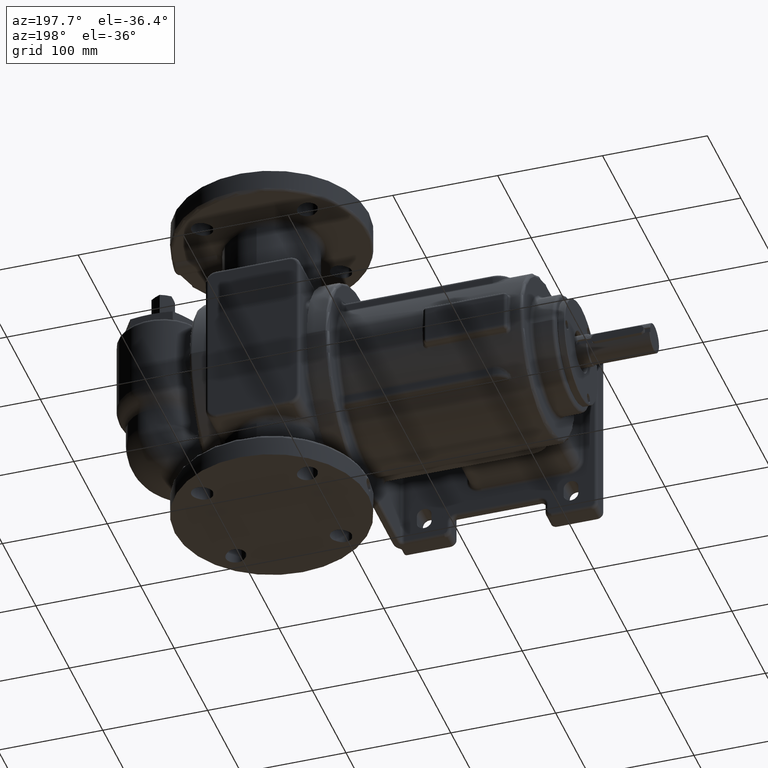
[diagram: clean part render]
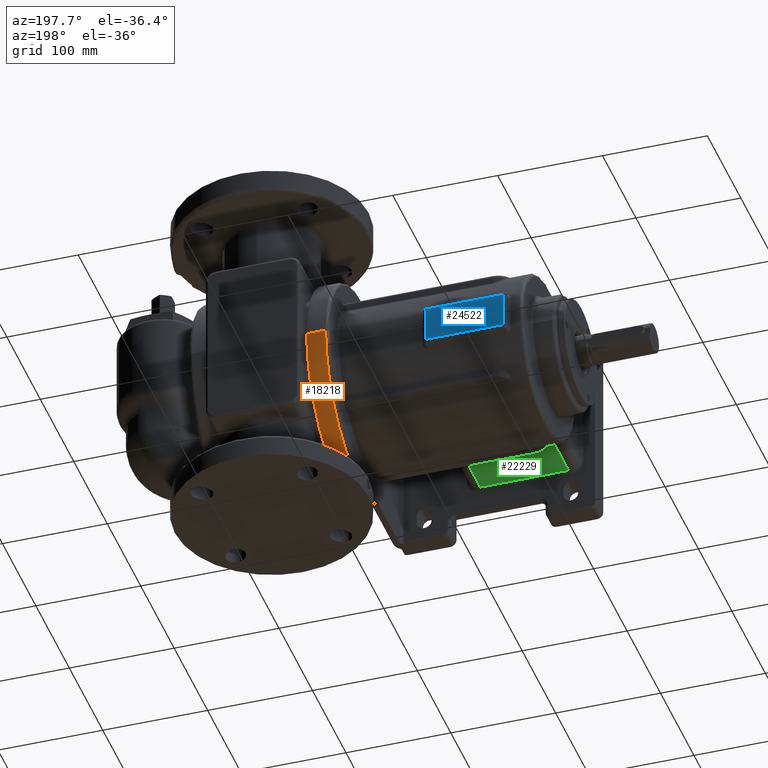
[diagram: same view with three faces highlighted in distinct colors, each labeled with its STEP entity id]
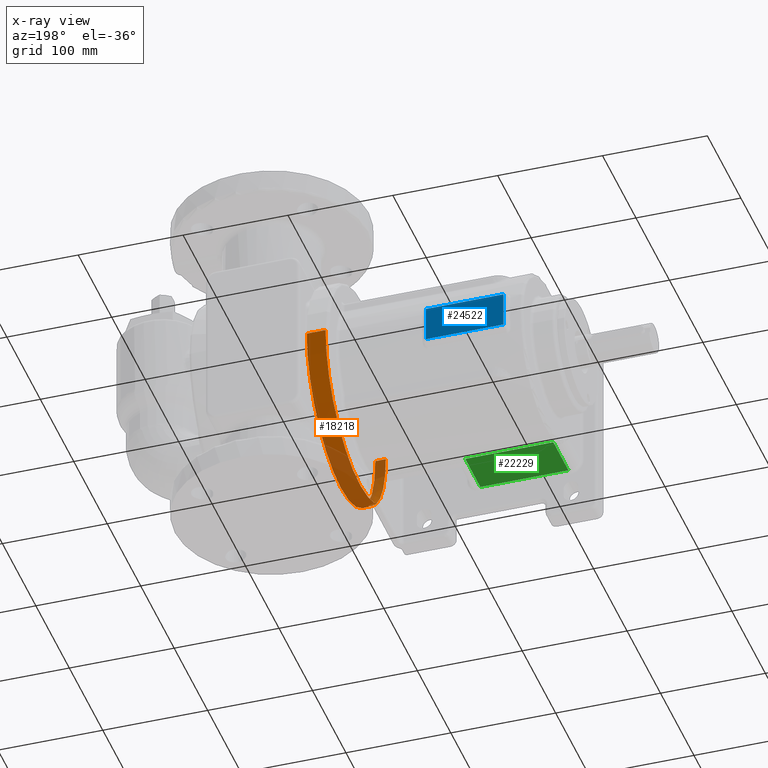
[diagram: x-ray of the same camera — body ghosted, the three highlighted faces saturated]
A machine part, auxiliary view with three faces highlighted in distinct colors.
The next image is the same camera in x-ray (body ghosted, the three faces saturated) — at least one of them is partly hidden behind the body in this view.
Their STEP definitions:

[orange] entity #18218 — the highlighted cylindrical surface (partial cylindrical patch) has radius 102.5 mm, axis along (1, 0, 0).
#144=DIRECTION('',(1.E0,0.E0,1.579494614946E-12));
#145=VECTOR('',#144,1.E1);
#146=CARTESIAN_POINT('',(-1.E0,-1.025E2,-1.580331456925E-11));
#147=LINE('',#146,#145);
#148=CARTESIAN_POINT('',(9.000000000001E0,0.E0,0.E0));
#149=DIRECTION('',(1.E0,0.E0,0.E0));
#150=DIRECTION('',(0.E0,-1.E0,0.E0));
#151=AXIS2_PLACEMENT_3D('',#148,#149,#150);
#153=DIRECTION('',(-1.E0,0.E0,2.589430727453E-13));
#154=VECTOR('',#153,1.8E1);
#155=CARTESIAN_POINT('',(9.E0,1.025E2,0.E0));
#156=LINE('',#155,#154);
#157=CARTESIAN_POINT('',(-9.E0,0.E0,0.E0));
#158=DIRECTION('',(-1.E0,0.E0,0.E0));
#159=DIRECTION('',(0.E0,1.E0,0.E0));
#160=AXIS2_PLACEMENT_3D('',#157,#158,#159);
#162=CARTESIAN_POINT('',(-7.E0,-4.695759184731E1,-9.111111111111E1));
#163=CARTESIAN_POINT('',(-6.910604357673E0,-4.695759051386E1,
-9.111111137056E1));
#164=CARTESIAN_POINT('',(-6.732080722292E0,-4.696139606516E1,
-9.110915081257E1));
#165=CARTESIAN_POINT('',(-6.464895352322E0,-4.697859950717E1,
-9.110028206258E1));
#166=CARTESIAN_POINT('',(-6.198918648446E0,-4.700727423068E1,
-9.108549094633E1));
#167=CARTESIAN_POINT('',(-5.934626750505E0,-4.704736853806E1,
-9.106479008663E1));
#168=CARTESIAN_POINT('',(-5.672552018322E0,-4.709906973665E1,
-9.103806354376E1));
#169=CARTESIAN_POINT('',(-5.413183093086E0,-4.716210668331E1,
-9.100542663381E1));
#170=CARTESIAN_POINT('',(-5.156922746301E0,-4.723642412162E1,
-9.096687825115E1));
#171=CARTESIAN_POINT('',(-4.904097649247E0,-4.732218743944E1,
-9.092229707884E1));
#172=CARTESIAN_POINT('',(-4.654654160406E0,-4.741919223551E1,
-9.087174844535E1));
#173=CARTESIAN_POINT('',(-4.408866181449E0,-4.752758243272E1,
-9.081511129945E1));
#174=CARTESIAN_POINT('',(-4.167014571387E0,-4.764755414767E1,
-9.075223011937E1));
#175=CARTESIAN_POINT('',(-3.929116496345E0,-4.777866281322E1,
-9.068328048737E1));
#176=CARTESIAN_POINT('',(-3.695854304067E0,-4.792154465673E1,
-9.060786370681E1));
#177=CARTESIAN_POINT('',(-3.466349722194E0,-4.807600879910E1,
-9.052600951940E1));
#178=CARTESIAN_POINT('',(-3.240812441009E0,-4.824322601917E1,
-9.043701705702E1));
#179=CARTESIAN_POINT('',(-3.018716614888E0,-4.842356142694E1,
-9.034059826219E1));
#180=CARTESIAN_POINT('',(-2.800845845239E0,-4.861741150248E1,
-9.023643726184E1));
#181=CARTESIAN_POINT('',(-2.588070985213E0,-4.882493784640E1,
-9.012433203886E1));
#182=CARTESIAN_POINT('',(-2.380898880604E0,-4.904597361138E1,
-9.000424938508E1));
#183=CARTESIAN_POINT('',(-2.180839585615E0,-4.928056684252E1,
-8.987603084277E1));
#184=CARTESIAN_POINT('',(-1.988487898938E0,-4.952798891087E1,
-8.973993704877E1));
#185=CARTESIAN_POINT('',(-1.805303112564E0,-4.978800141596E1,
-8.959595870924E1));
#186=CARTESIAN_POINT('',(-1.631549328913E0,-5.006037835931E1,
-8.944407460365E1));
#187=CARTESIAN_POINT('',(-1.468118009949E0,-5.034520225531E1,
-8.928408479525E1));
#188=CARTESIAN_POINT('',(-1.315583736101E0,-5.064233640310E1,
-8.911590378570E1));
#189=CARTESIAN_POINT('',(-1.174640146189E0,-5.095181451119E1,
-8.893934293340E1));
#190=CARTESIAN_POINT('',(-1.046045644896E0,-5.127370846182E1,
-8.875418072521E1));
#191=CARTESIAN_POINT('',(-9.309339925609E-1,-5.160669684397E1,
-8.856099416078E1));
#192=CARTESIAN_POINT('',(-8.306598691240E-1,-5.194827846010E1,
-8.836107759035E1));
#193=CARTESIAN_POINT('',(-7.450093517098E-1,-5.229988241523E1,
-8.815344653416E1));
#194=CARTESIAN_POINT('',(-6.738276886550E-1,-5.266603121514E1,
-8.793521770567E1));
#195=CARTESIAN_POINT('',(-6.178073514321E-1,-5.305022379093E1,
-8.770402017212E1));
#196=CARTESIAN_POINT('',(-5.784926880503E-1,-5.345714157702E1,
-8.745663366316E1));
#197=CARTESIAN_POINT('',(-5.586131440924E-1,-5.387481441641E1,
-8.719997143645E1));
#198=CARTESIAN_POINT('',(-5.582829366097E-1,-5.428966814479E1,
-8.694227638338E1));
#199=CARTESIAN_POINT('',(-5.750066974804E-1,-5.468866977866E1,
-8.669180577509E1));
#200=CARTESIAN_POINT('',(-6.045328209753E-1,-5.506040795080E1,
-8.645611799635E1));
#201=CARTESIAN_POINT('',(-6.412929629029E-1,-5.539365452916E1,
-8.624289952622E1));
#202=CARTESIAN_POINT('',(-6.793894897649E-1,-5.567829744341E1,
-8.605934172456E1));
#203=CARTESIAN_POINT('',(-7.172569972433E-1,-5.592977139365E1,
-8.589608796646E1));
#204=CARTESIAN_POINT('',(-7.550834135400E-1,-5.616218580744E1,
-8.574429207638E1));
#205=CARTESIAN_POINT('',(-7.942239916668E-1,-5.639081501093E1,
-8.559410992900E1));
#206=CARTESIAN_POINT('',(-8.354032208933E-1,-5.662601799359E1,
-8.543869701221E1));
#207=CARTESIAN_POINT('',(-8.765742393348E-1,-5.686203804925E1,
-8.528179939703E1));
#208=CARTESIAN_POINT('',(-9.153405740108E-1,-5.709642400418E1,
-8.512505280521E1));
#209=CARTESIAN_POINT('',(-9.498760235500E-1,-5.732742706072E1,
-8.496965015185E1));
#210=CARTESIAN_POINT('',(-9.773087142917E-1,-5.755321969904E1,
-8.481686815238E1));
#211=CARTESIAN_POINT('',(-9.955251546397E-1,-5.777211452158E1,
-8.466790996317E1));
#212=CARTESIAN_POINT('',(-9.999842627528E-1,-5.791117288841E1,
-8.457276884673E1));
#213=CARTESIAN_POINT('',(-9.999810685082E-1,-5.797943558383E1,
-8.452594305498E1));
#215=CARTESIAN_POINT('',(-1.E0,0.E0,0.E0));
#216=DIRECTION('',(1.E0,0.E0,0.E0));
#217=DIRECTION('',(0.E0,-1.E0,0.E0));
#218=AXIS2_PLACEMENT_3D('',#215,#216,#217);
#318=CARTESIAN_POINT('',(-9.999810685082E-1,-5.797943558383E1,
-8.452594305498E1));
#388=CARTESIAN_POINT('',(-7.E0,-4.695759184731E1,-9.111111111111E1));
#390=DIRECTION('',(-1.E0,2.178023095212E-9,-1.122543835663E-9));
#391=VECTOR('',#390,2.E0);
#392=CARTESIAN_POINT('',(-7.E0,-4.695759184731E1,-9.111111111111E1));
#393=LINE('',#392,#391);
#16440=CARTESIAN_POINT('',(-9.E0,1.025E2,1.255262969126E-14));
#16441=CARTESIAN_POINT('',(-9.E0,-4.695759184731E1,-9.111111111111E1));
#16442=VERTEX_POINT('',#16440);
#16443=VERTEX_POINT('',#16441);
#16737=VERTEX_POINT('',#318);
#16739=VERTEX_POINT('',#388);
#16743=CARTESIAN_POINT('',(-1.E0,-1.025E2,-2.510525938252E-14));
#16744=VERTEX_POINT('',#16743);
#17090=CARTESIAN_POINT('',(9.000000000001E0,-1.025E2,0.E0));
#17091=CARTESIAN_POINT('',(9.000000000001E0,1.025E2,1.255262969126E-14));
#17092=VERTEX_POINT('',#17090);
#17093=VERTEX_POINT('',#17091);
#18198=CARTESIAN_POINT('',(-2.23275E2,0.E0,0.E0));
#18199=DIRECTION('',(1.E0,0.E0,0.E0));
#18200=DIRECTION('',(0.E0,-1.E0,0.E0));
#18201=AXIS2_PLACEMENT_3D('',#18198,#18199,#18200);
#18202=CYLINDRICAL_SURFACE('',#18201,1.025E2);
#18204=ORIENTED_EDGE('',*,*,#18203,.T.);
#18205=ORIENTED_EDGE('',*,*,#18146,.T.);
#18207=ORIENTED_EDGE('',*,*,#18206,.T.);
#18209=ORIENTED_EDGE('',*,*,#18208,.T.);
#18211=ORIENTED_EDGE('',*,*,#18210,.F.);
#18213=ORIENTED_EDGE('',*,*,#18212,.T.);
#18215=ORIENTED_EDGE('',*,*,#18214,.F.);
#18216=EDGE_LOOP('',(#18204,#18205,#18207,#18209,#18211,#18213,#18215));
#18217=FACE_OUTER_BOUND('',#18216,.F.);
#18218=ADVANCED_FACE('',(#18217),#18202,.T.);
#152=CIRCLE('',#151,1.025E2);
#161=CIRCLE('',#160,1.025E2);
#214=B_SPLINE_CURVE_WITH_KNOTS('',3,(#162,#163,#164,#165,#166,#167,#168,#169,
#170,#171,#172,#173,#174,#175,#176,#177,#178,#179,#180,#181,#182,#183,#184,#185,
#186,#187,#188,#189,#190,#191,#192,#193,#194,#195,#196,#197,#198,#199,#200,#201,
#202,#203,#204,#205,#206,#207,#208,#209,#210,#211,#212,#213),.UNSPECIFIED.,.F.,
.F.,(4,1,1,1,1,1,1,1,1,1,1,1,1,1,1,1,1,1,1,1,1,1,1,1,1,1,1,1,1,1,1,1,1,1,1,1,1,
1,1,1,1,1,1,1,1,1,1,1,1,4),(0.E0,2.040816326531E-2,4.081632653061E-2,
6.122448979592E-2,8.163265306122E-2,1.020408163265E-1,1.224489795918E-1,
1.428571428571E-1,1.632653061224E-1,1.836734693878E-1,2.040816326531E-1,
2.244897959184E-1,2.448979591837E-1,2.653061224490E-1,2.857142857143E-1,
3.061224489796E-1,3.265306122449E-1,3.469387755102E-1,3.673469387755E-1,
3.877551020408E-1,4.081632653061E-1,4.285714285714E-1,4.489795918367E-1,
4.693877551020E-1,4.897959183673E-1,5.102040816327E-1,5.306122448980E-1,
5.510204081633E-1,5.714285714286E-1,5.918367346939E-1,6.122448979592E-1,
6.326530612245E-1,6.530612244898E-1,6.734693877551E-1,6.938775510204E-1,
7.142857142857E-1,7.346938775510E-1,7.551020408163E-1,7.755102040816E-1,
7.959183673469E-1,8.163265306122E-1,8.367346938776E-1,8.571428571429E-1,
8.775510204082E-1,8.979591836735E-1,9.183673469388E-1,9.387755102041E-1,
9.591836734694E-1,9.795918367347E-1,1.E0),.UNSPECIFIED.);
#219=CIRCLE('',#218,1.025E2);
#18146=EDGE_CURVE('',#17092,#17093,#152,.T.);
#18203=EDGE_CURVE('',#16744,#17092,#147,.T.);
#18206=EDGE_CURVE('',#17093,#16442,#156,.T.);
#18208=EDGE_CURVE('',#16442,#16443,#161,.T.);
#18210=EDGE_CURVE('',#16739,#16443,#393,.T.);
#18212=EDGE_CURVE('',#16739,#16737,#214,.T.);
#18214=EDGE_CURVE('',#16744,#16737,#219,.T.);

[blue] entity #24522 — the highlighted planar face has unit normal (0, 1, 0).
#5767=DIRECTION('',(0.E0,0.E0,-1.E0));
#5768=VECTOR('',#5767,3.400000001723E1);
#5769=CARTESIAN_POINT('',(-9.85E1,8.35E1,1.700000000862E1));
#5770=LINE('',#5769,#5768);
#5771=DIRECTION('',(1.E0,0.E0,0.E0));
#5772=VECTOR('',#5771,7.4E1);
#5773=CARTESIAN_POINT('',(-1.725E2,8.35E1,1.700000000862E1));
#5774=LINE('',#5773,#5772);
#5775=DIRECTION('',(0.E0,0.E0,1.E0));
#5776=VECTOR('',#5775,3.400000001723E1);
#5777=CARTESIAN_POINT('',(-1.725E2,8.35E1,-1.700000000862E1));
#5778=LINE('',#5777,#5776);
#5779=DIRECTION('',(-1.E0,0.E0,0.E0));
#5780=VECTOR('',#5779,7.4E1);
#5781=CARTESIAN_POINT('',(-9.85E1,8.35E1,-1.700000000862E1));
#5782=LINE('',#5781,#5780);
#16859=CARTESIAN_POINT('',(-9.85E1,8.35E1,-1.7E1));
#16861=VERTEX_POINT('',#16859);
#16863=CARTESIAN_POINT('',(-9.85E1,8.35E1,1.700000000862E1));
#16864=VERTEX_POINT('',#16863);
#16885=CARTESIAN_POINT('',(-1.725E2,8.35E1,1.7E1));
#16887=VERTEX_POINT('',#16885);
#16889=CARTESIAN_POINT('',(-1.725E2,8.35E1,-1.700000000862E1));
#16890=VERTEX_POINT('',#16889);
#24509=CARTESIAN_POINT('',(0.E0,8.35E1,0.E0));
#24510=DIRECTION('',(0.E0,1.E0,0.E0));
#24511=DIRECTION('',(1.E0,0.E0,0.E0));
#24512=AXIS2_PLACEMENT_3D('',#24509,#24510,#24511);
#24513=PLANE('',#24512);
#24514=ORIENTED_EDGE('',*,*,#24497,.F.);
#24516=ORIENTED_EDGE('',*,*,#24515,.F.);
#24518=ORIENTED_EDGE('',*,*,#24517,.F.);
#24519=ORIENTED_EDGE('',*,*,#24472,.F.);
#24520=EDGE_LOOP('',(#24514,#24516,#24518,#24519));
#24521=FACE_OUTER_BOUND('',#24520,.F.);
#24522=ADVANCED_FACE('',(#24521),#24513,.T.);
#24472=EDGE_CURVE('',#16861,#16890,#5782,.T.);
#24497=EDGE_CURVE('',#16864,#16861,#5770,.T.);
#24515=EDGE_CURVE('',#16887,#16864,#5774,.T.);
#24517=EDGE_CURVE('',#16890,#16887,#5778,.T.);

[green] entity #22229 — the highlighted planar face has unit normal (0, 0, -1).
#3948=DIRECTION('',(-1.E0,0.E0,0.E0));
#3949=VECTOR('',#3948,8.399999999404E1);
#3950=CARTESIAN_POINT('',(-8.850000000303E1,-1.11E2,-4.5E1));
#3951=LINE('',#3950,#3949);
#3952=DIRECTION('',(5.536063215975E-11,-1.E0,0.E0));
#3953=VECTOR('',#3952,4.513460696238E1);
#3954=CARTESIAN_POINT('',(-8.850000000553E1,-6.586539303762E1,-4.5E1));
#3955=LINE('',#3954,#3953);
#3956=DIRECTION('',(1.E0,0.E0,0.E0));
#3957=VECTOR('',#3956,8.399999999081E1);
#3958=CARTESIAN_POINT('',(-1.724999999963E2,-6.586539303762E1,-4.5E1));
#3959=LINE('',#3958,#3957);
#3960=DIRECTION('',(-1.624399691965E-11,-1.E0,0.E0));
#3961=VECTOR('',#3960,4.513460696238E1);
#3962=CARTESIAN_POINT('',(-1.724999999963E2,-6.586539303762E1,-4.5E1));
#3963=LINE('',#3962,#3961);
#3969=CARTESIAN_POINT('',(-8.850000000553E1,-6.586539303762E1,-4.5E1));
#16608=CARTESIAN_POINT('',(-1.725E2,-1.11E2,-4.5E1));
#16609=VERTEX_POINT('',#16608);
#16612=CARTESIAN_POINT('',(-8.850000000303E1,-1.11E2,-4.5E1));
#16613=VERTEX_POINT('',#16612);
#16620=VERTEX_POINT('',#3969);
#16624=CARTESIAN_POINT('',(-1.724999999963E2,-6.586539303762E1,-4.5E1));
#16625=VERTEX_POINT('',#16624);
#22217=CARTESIAN_POINT('',(-7.75E1,-1.14E2,-4.5E1));
#22218=DIRECTION('',(0.E0,0.E0,-1.E0));
#22219=DIRECTION('',(-1.E0,0.E0,0.E0));
#22220=AXIS2_PLACEMENT_3D('',#22217,#22218,#22219);
#22221=PLANE('',#22220);
#22222=ORIENTED_EDGE('',*,*,#20541,.F.);
#22224=ORIENTED_EDGE('',*,*,#22223,.F.);
#22225=ORIENTED_EDGE('',*,*,#20758,.F.);
#22226=ORIENTED_EDGE('',*,*,#22210,.T.);
#22227=EDGE_LOOP('',(#22222,#22224,#22225,#22226));
#22228=FACE_OUTER_BOUND('',#22227,.F.);
#22229=ADVANCED_FACE('',(#22228),#22221,.T.);
#20541=EDGE_CURVE('',#16613,#16609,#3951,.T.);
#20758=EDGE_CURVE('',#16625,#16620,#3959,.T.);
#22210=EDGE_CURVE('',#16625,#16609,#3963,.T.);
#22223=EDGE_CURVE('',#16620,#16613,#3955,.T.);